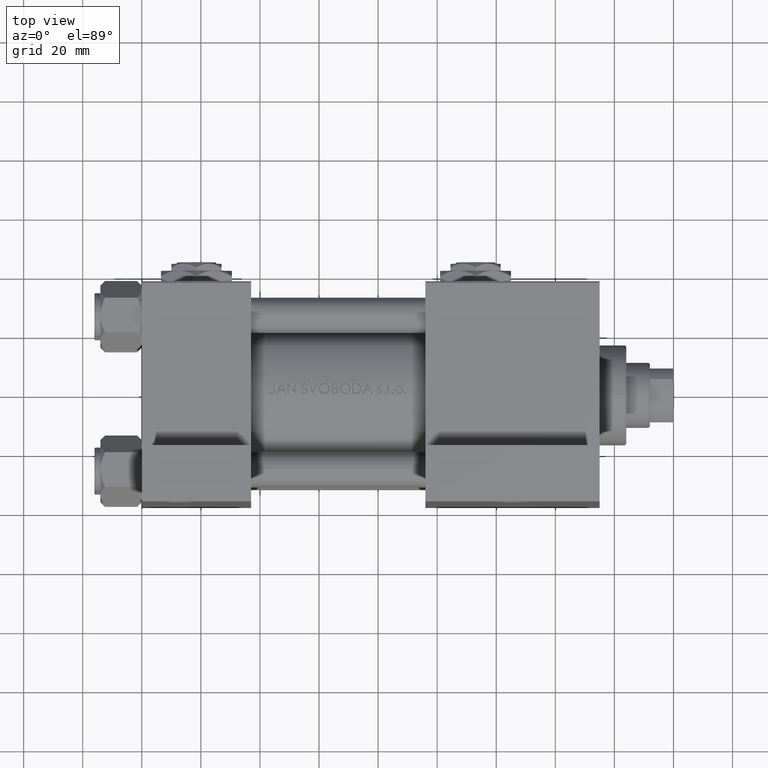
[diagram: clean part render]
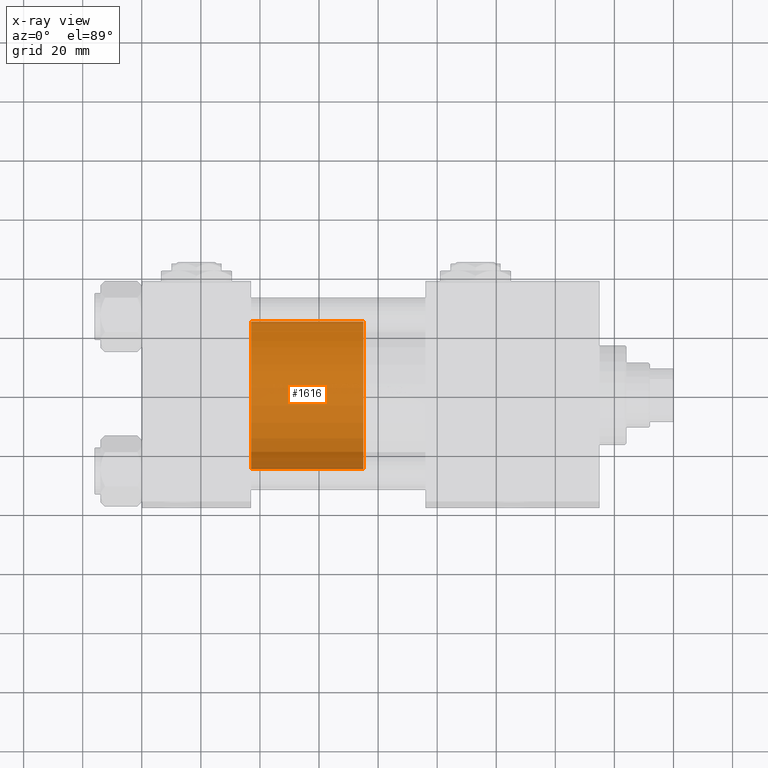
[diagram: x-ray — body ghosted, one internal face saturated and labeled with its STEP entity id]
A machine part, top view, then the same camera in x-ray: the body is ghosted and one INTERNAL B-rep face — a face not visible from any outside direction — is saturated and labeled: STEP entity #1616.
In plain terms, the highlighted cylindrical surface (partial cylindrical patch) has radius 25 mm, axis along (-1, 0, 0).
Its self-contained STEP definition (entity closure, byte-faithful):
#1616 = ADVANCED_FACE ( 'NONE', ( #10850 ), #37164, .T. ) ;
#2216 = DIRECTION ( 'NONE',  ( -0.000000000000000000, -0.000000000000000000, -1.000000000000000000 ) ) ;
#3476 = VERTEX_POINT ( 'NONE', #23604 ) ;
#3777 = EDGE_CURVE ( 'NONE', #46067, #48292, #8936, .T. ) ;
#3815 = CARTESIAN_POINT ( 'NONE',  ( 0.000000000000000000, 0.000000000000000000, 38.00000000000000000 ) ) ;
#4921 = CARTESIAN_POINT ( 'NONE',  ( 25.00000000000000000, 3.061616997868383043E-15, 38.00000000000000000 ) ) ;
#5031 = EDGE_CURVE ( 'NONE', #16254, #46067, #35375, .T. ) ;
#5042 = VECTOR ( 'NONE', #16772, 1000.000000000000000 ) ;
#7870 = CARTESIAN_POINT ( 'NONE',  ( 0.000000000000000000, 0.000000000000000000, 0.000000000000000000 ) ) ;
#8110 = DIRECTION ( 'NONE',  ( 1.000000000000000000, 0.000000000000000000, 0.000000000000000000 ) ) ;
#8936 = CIRCLE ( 'NONE', #38301, 25.00000000000000000 ) ;
#10850 = FACE_OUTER_BOUND ( 'NONE', #25805, .T. ) ;
#14318 = ORIENTED_EDGE ( 'NONE', *, *, #5031, .T. ) ;
#14880 = AXIS2_PLACEMENT_3D ( 'NONE', #3815, #45718, #38288 ) ;
#16254 = VERTEX_POINT ( 'NONE', #4921 ) ;
#16442 = CIRCLE ( 'NONE', #14880, 25.00000000000000000 ) ;
#16772 = DIRECTION ( 'NONE',  ( -0.000000000000000000, -0.000000000000000000, -1.000000000000000000 ) ) ;
#18399 = EDGE_CURVE ( 'NONE', #3476, #48292, #24047, .T. ) ;
#18402 = AXIS2_PLACEMENT_3D ( 'NONE', #47834, #2216, #29486 ) ;
#21155 = CARTESIAN_POINT ( 'NONE',  ( 25.00000000000000000, 3.061616997868383043E-15, 0.000000000000000000 ) ) ;
#23604 = CARTESIAN_POINT ( 'NONE',  ( -25.00000000000000000, 0.000000000000000000, 38.00000000000000000 ) ) ;
#24047 = LINE ( 'NONE', #46111, #43142 ) ;
#25805 = EDGE_LOOP ( 'NONE', ( #45352, #14318, #45099, #29092 ) ) ;
#26893 = CARTESIAN_POINT ( 'NONE',  ( -25.00000000000000000, 0.000000000000000000, 0.000000000000000000 ) ) ;
#27034 = DIRECTION ( 'NONE',  ( -0.000000000000000000, -0.000000000000000000, -1.000000000000000000 ) ) ;
#29092 = ORIENTED_EDGE ( 'NONE', *, *, #18399, .F. ) ;
#29486 = DIRECTION ( 'NONE',  ( -1.000000000000000000, 0.000000000000000000, 0.000000000000000000 ) ) ;
#35375 = LINE ( 'NONE', #39585, #5042 ) ;
#36744 = EDGE_CURVE ( 'NONE', #16254, #3476, #16442, .T. ) ;
#37164 = CYLINDRICAL_SURFACE ( 'NONE', #18402, 25.00000000000000000 ) ;
#38288 = DIRECTION ( 'NONE',  ( 1.000000000000000000, 0.000000000000000000, 0.000000000000000000 ) ) ;
#38301 = AXIS2_PLACEMENT_3D ( 'NONE', #7870, #45801, #8110 ) ;
#39585 = CARTESIAN_POINT ( 'NONE',  ( 25.00000000000000000, 3.061616997868383043E-15, 38.00000000000000000 ) ) ;
#43142 = VECTOR ( 'NONE', #27034, 1000.000000000000000 ) ;
#45099 = ORIENTED_EDGE ( 'NONE', *, *, #3777, .T. ) ;
#45352 = ORIENTED_EDGE ( 'NONE', *, *, #36744, .F. ) ;
#45718 = DIRECTION ( 'NONE',  ( 0.000000000000000000, 0.000000000000000000, 1.000000000000000000 ) ) ;
#45801 = DIRECTION ( 'NONE',  ( 0.000000000000000000, 0.000000000000000000, 1.000000000000000000 ) ) ;
#46067 = VERTEX_POINT ( 'NONE', #21155 ) ;
#46111 = CARTESIAN_POINT ( 'NONE',  ( -25.00000000000000000, 0.000000000000000000, 38.00000000000000000 ) ) ;
#47834 = CARTESIAN_POINT ( 'NONE',  ( 0.000000000000000000, 0.000000000000000000, 38.00000000000000000 ) ) ;
#48292 = VERTEX_POINT ( 'NONE', #26893 ) ;